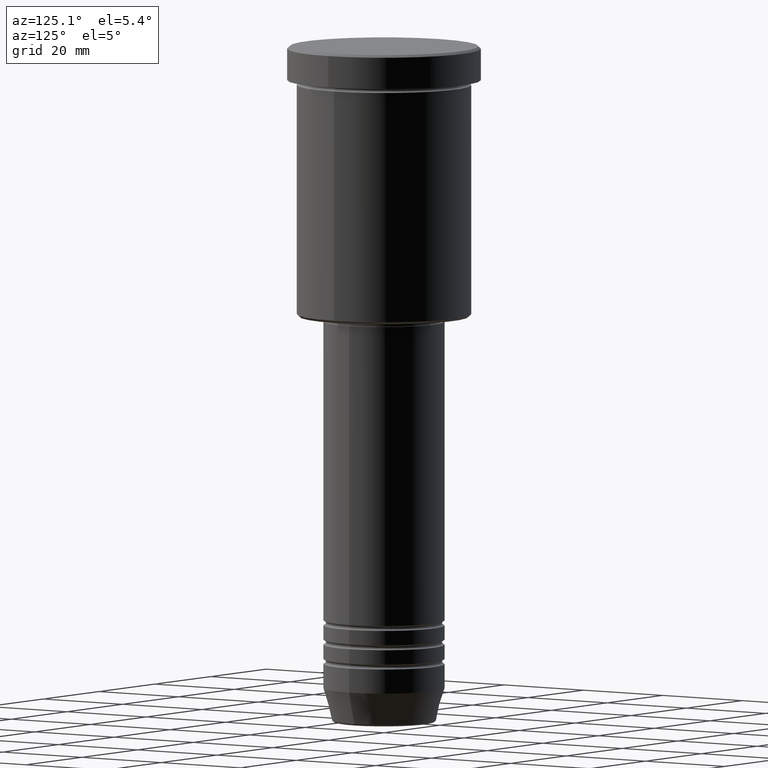
[diagram: clean part render]
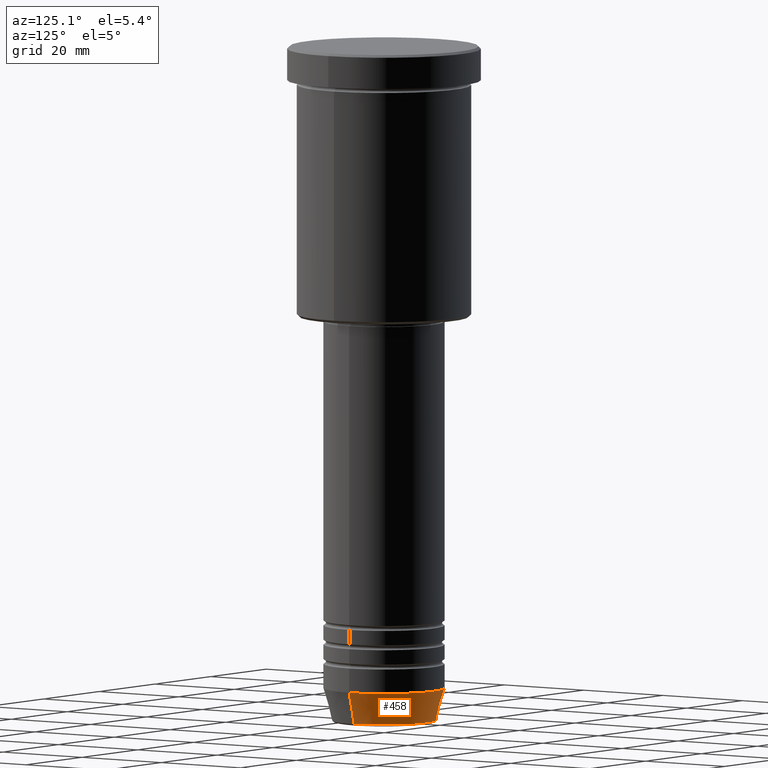
[diagram: same view with one face highlighted and labeled with its STEP entity id]
A machine part, auxiliary view. The second image highlights one B-rep face of the part: STEP entity #458.
In plain terms, the highlighted conical surface has half-angle 15 deg.
Its self-contained STEP definition (entity closure, byte-faithful):
#6 = AXIS2_PLACEMENT_3D ( 'NONE', #429, #900, #535 ) ;
#21 = EDGE_CURVE ( 'NONE', #1040, #383, #338, .T. ) ;
#112 = LINE ( 'NONE', #425, #375 ) ;
#154 = FACE_OUTER_BOUND ( 'NONE', #1103, .T. ) ;
#175 = EDGE_CURVE ( 'NONE', #235, #1040, #318, .T. ) ;
#180 = ORIENTED_EDGE ( 'NONE', *, *, #496, .F. ) ;
#191 = AXIS2_PLACEMENT_3D ( 'NONE', #358, #1083, #453 ) ;
#196 = CARTESIAN_POINT ( 'NONE',  ( -12.50000000000000000, 1.530808498934191521E-15, -133.0000000000000000 ) ) ;
#212 = ORIENTED_EDGE ( 'NONE', *, *, #175, .T. ) ;
#221 = DIRECTION ( 'NONE',  ( 0.2588190451025213501, 0.000000000000000000, 0.9659258262890680902 ) ) ;
#235 = VERTEX_POINT ( 'NONE', #1006 ) ;
#250 = CARTESIAN_POINT ( 'NONE',  ( -12.50000000000000000, 1.530808498934191521E-15, -133.0000000000000000 ) ) ;
#275 = CONICAL_SURFACE ( 'NONE', #6, 12.50000000000000000, 0.2617993877991500740 ) ;
#318 = CIRCLE ( 'NONE', #191, 10.72365507213718416 ) ;
#338 = LINE ( 'NONE', #250, #409 ) ;
#358 = CARTESIAN_POINT ( 'NONE',  ( 0.000000000000000000, 0.000000000000000000, -139.6294095225512990 ) ) ;
#375 = VECTOR ( 'NONE', #221, 1000.000000000000000 ) ;
#383 = VERTEX_POINT ( 'NONE', #196 ) ;
#409 = VECTOR ( 'NONE', #1148, 1000.000000000000000 ) ;
#425 = CARTESIAN_POINT ( 'NONE',  ( 12.50000000000000000, 0.000000000000000000, -133.0000000000000000 ) ) ;
#429 = CARTESIAN_POINT ( 'NONE',  ( 0.000000000000000000, 0.000000000000000000, -133.0000000000000000 ) ) ;
#453 = DIRECTION ( 'NONE',  ( 1.000000000000000000, 0.000000000000000000, 0.000000000000000000 ) ) ;
#458 = ADVANCED_FACE ( 'NONE', ( #154 ), #275, .T. ) ;
#468 = CARTESIAN_POINT ( 'NONE',  ( 12.50000000000000000, 0.000000000000000000, -133.0000000000000000 ) ) ;
#496 = EDGE_CURVE ( 'NONE', #661, #383, #702, .T. ) ;
#535 = DIRECTION ( 'NONE',  ( 1.000000000000000000, 0.000000000000000000, 0.000000000000000000 ) ) ;
#547 = AXIS2_PLACEMENT_3D ( 'NONE', #1141, #895, #1075 ) ;
#661 = VERTEX_POINT ( 'NONE', #468 ) ;
#702 = CIRCLE ( 'NONE', #547, 12.50000000000000000 ) ;
#794 = ORIENTED_EDGE ( 'NONE', *, *, #1106, .F. ) ;
#849 = ORIENTED_EDGE ( 'NONE', *, *, #21, .T. ) ;
#895 = DIRECTION ( 'NONE',  ( -0.000000000000000000, -0.000000000000000000, 1.000000000000000000 ) ) ;
#900 = DIRECTION ( 'NONE',  ( -0.000000000000000000, -0.000000000000000000, 1.000000000000000000 ) ) ;
#984 = CARTESIAN_POINT ( 'NONE',  ( -10.72365507213718416, 1.422038742429750121E-15, -139.6294095225512990 ) ) ;
#1006 = CARTESIAN_POINT ( 'NONE',  ( 10.72365507213718416, 0.000000000000000000, -139.6294095225512990 ) ) ;
#1040 = VERTEX_POINT ( 'NONE', #984 ) ;
#1075 = DIRECTION ( 'NONE',  ( 1.000000000000000000, 0.000000000000000000, 0.000000000000000000 ) ) ;
#1083 = DIRECTION ( 'NONE',  ( -0.000000000000000000, -0.000000000000000000, 1.000000000000000000 ) ) ;
#1103 = EDGE_LOOP ( 'NONE', ( #212, #849, #180, #794 ) ) ;
#1106 = EDGE_CURVE ( 'NONE', #235, #661, #112, .T. ) ;
#1141 = CARTESIAN_POINT ( 'NONE',  ( 0.000000000000000000, 0.000000000000000000, -133.0000000000000000 ) ) ;
#1148 = DIRECTION ( 'NONE',  ( -0.2588190451025213501, 3.169619151431772337E-17, 0.9659258262890680902 ) ) ;